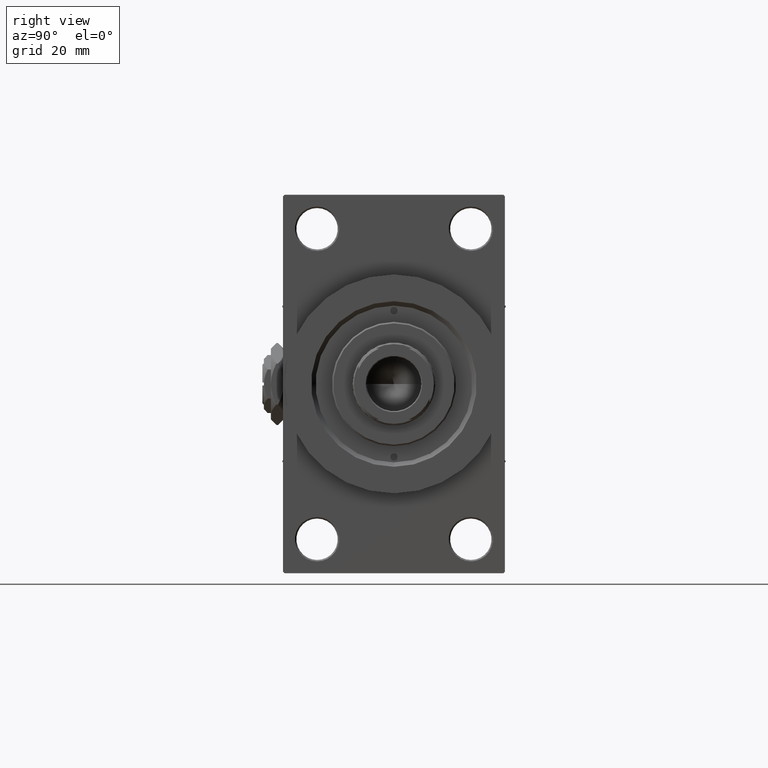
[diagram: clean part render]
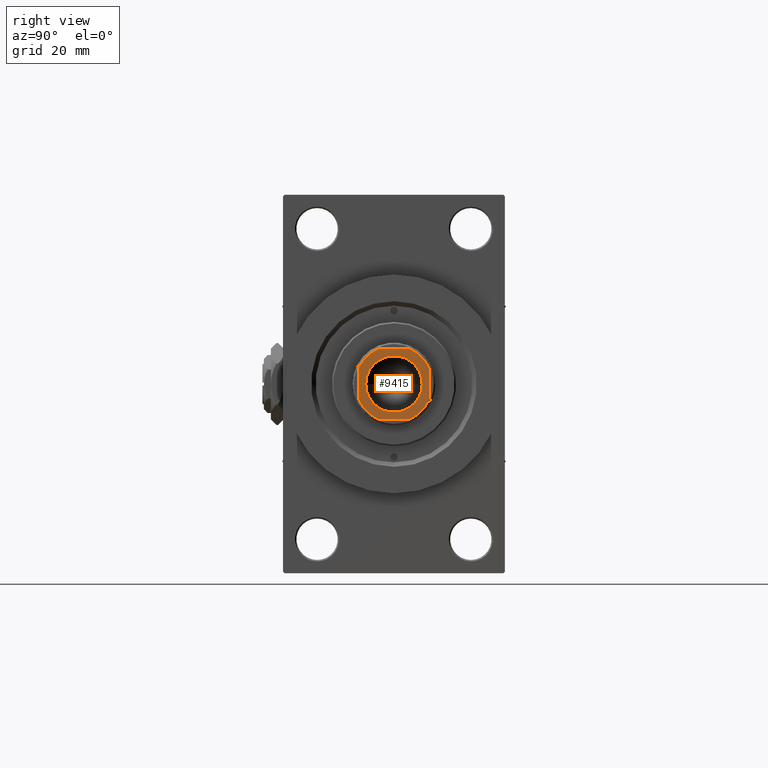
[diagram: same view with one face highlighted and labeled with its STEP entity id]
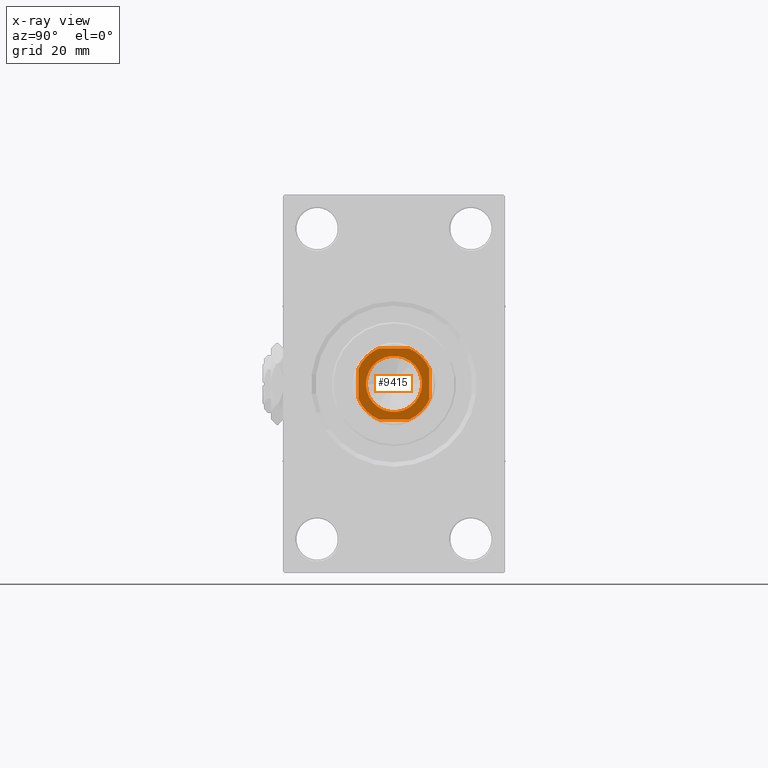
[diagram: x-ray of the same camera — body ghosted, the highlighted face saturated]
A machine part, right view. The second image highlights one B-rep face of the part: STEP entity #9415.
The next image is the same camera in x-ray: the body ghosted, the highlighted face saturated — about 0% of this face is hidden behind the body in this view.
In plain terms, the highlighted planar face has unit normal (1, 0, 0).
Its self-contained STEP definition (entity closure, byte-faithful):
#536 = CARTESIAN_POINT ( 'NONE',  ( 4.999999999999984013, 11.99999999999999645, 142.0000000000000284 ) ) ;
#1662 = AXIS2_PLACEMENT_3D ( 'NONE', #22559, #7660, #26061 ) ;
#2038 = VERTEX_POINT ( 'NONE', #8298 ) ;
#2517 = DIRECTION ( 'NONE',  ( 0.000000000000000000, -0.000000000000000000, -1.000000000000000000 ) ) ;
#3606 = EDGE_LOOP ( 'NONE', ( #5716, #37898, #16500, #34752, #8636, #34954, #28021, #42979 ) ) ;
#3992 = AXIS2_PLACEMENT_3D ( 'NONE', #13322, #36404, #28466 ) ;
#4152 = VERTEX_POINT ( 'NONE', #25389 ) ;
#4267 = DIRECTION ( 'NONE',  ( 7.228014483236695816E-17, -1.000000000000000000, 0.000000000000000000 ) ) ;
#4964 = LINE ( 'NONE', #16386, #40137 ) ;
#5535 = VECTOR ( 'NONE', #41480, 1000.000000000000000 ) ;
#5716 = ORIENTED_EDGE ( 'NONE', *, *, #47323, .T. ) ;
#6798 = VERTEX_POINT ( 'NONE', #26492 ) ;
#7660 = DIRECTION ( 'NONE',  ( -0.000000000000000000, 0.000000000000000000, 1.000000000000000000 ) ) ;
#8298 = CARTESIAN_POINT ( 'NONE',  ( -4.999999999999944933, 11.99999999999999645, 142.0000000000000284 ) ) ;
#8636 = ORIENTED_EDGE ( 'NONE', *, *, #24087, .T. ) ;
#8711 = CIRCLE ( 'NONE', #45166, 9.550000000000002487 ) ;
#9014 = LINE ( 'NONE', #24165, #22658 ) ;
#9415 = ADVANCED_FACE ( 'NONE', ( #33760, #11185 ), #30290, .T. ) ;
#9742 = DIRECTION ( 'NONE',  ( 1.000000000000000000, 0.000000000000000000, 0.000000000000000000 ) ) ;
#10484 = LINE ( 'NONE', #11200, #47579 ) ;
#10505 = EDGE_CURVE ( 'NONE', #2038, #10716, #21495, .T. ) ;
#10716 = VERTEX_POINT ( 'NONE', #44160 ) ;
#11185 = FACE_OUTER_BOUND ( 'NONE', #3606, .T. ) ;
#11200 = CARTESIAN_POINT ( 'NONE',  ( -11.99999999999999822, -12.00000000000000355, 142.0000000000000284 ) ) ;
#11325 = DIRECTION ( 'NONE',  ( -0.000000000000000000, 0.000000000000000000, 1.000000000000000000 ) ) ;
#11676 = DIRECTION ( 'NONE',  ( -0.000000000000000000, 0.000000000000000000, 1.000000000000000000 ) ) ;
#13322 = CARTESIAN_POINT ( 'NONE',  ( 0.000000000000000000, 0.000000000000000000, 142.0000000000000284 ) ) ;
#14687 = CARTESIAN_POINT ( 'NONE',  ( -12.00000000000000000, -4.999999999999980460, 142.0000000000000284 ) ) ;
#15071 = EDGE_CURVE ( 'NONE', #24778, #2038, #30785, .T. ) ;
#16386 = CARTESIAN_POINT ( 'NONE',  ( 11.99999999999999645, 11.99999999999999645, 142.0000000000000284 ) ) ;
#16500 = ORIENTED_EDGE ( 'NONE', *, *, #15071, .T. ) ;
#17026 = CIRCLE ( 'NONE', #20225, 12.99999999999999112 ) ;
#17492 = CIRCLE ( 'NONE', #3992, 12.99999999999999289 ) ;
#18875 = AXIS2_PLACEMENT_3D ( 'NONE', #39901, #46862, #24508 ) ;
#19192 = VERTEX_POINT ( 'NONE', #14687 ) ;
#19315 = EDGE_LOOP ( 'NONE', ( #22214, #34872 ) ) ;
#20225 = AXIS2_PLACEMENT_3D ( 'NONE', #45349, #11325, #37888 ) ;
#21192 = VERTEX_POINT ( 'NONE', #24059 ) ;
#21495 = CIRCLE ( 'NONE', #1662, 12.99999999999997513 ) ;
#22214 = ORIENTED_EDGE ( 'NONE', *, *, #33571, .T. ) ;
#22559 = CARTESIAN_POINT ( 'NONE',  ( 0.000000000000000000, 0.000000000000000000, 142.0000000000000284 ) ) ;
#22626 = DIRECTION ( 'NONE',  ( 0.000000000000000000, -0.000000000000000000, -1.000000000000000000 ) ) ;
#22658 = VECTOR ( 'NONE', #4267, 1000.000000000000000 ) ;
#22872 = DIRECTION ( 'NONE',  ( 1.000000000000000000, 0.000000000000000000, 0.000000000000000000 ) ) ;
#24059 = CARTESIAN_POINT ( 'NONE',  ( -9.550000000000002487, 1.169537693185722558E-15, 142.0000000000000284 ) ) ;
#24087 = EDGE_CURVE ( 'NONE', #10716, #19192, #9014, .T. ) ;
#24103 = DIRECTION ( 'NONE',  ( -2.891205793294678326E-16, 1.000000000000000000, -0.000000000000000000 ) ) ;
#24165 = CARTESIAN_POINT ( 'NONE',  ( -12.00000000000000000, 11.99999999999999645, 142.0000000000000284 ) ) ;
#24508 = DIRECTION ( 'NONE',  ( 1.000000000000000000, 0.000000000000000000, 0.000000000000000000 ) ) ;
#24778 = VERTEX_POINT ( 'NONE', #536 ) ;
#25389 = CARTESIAN_POINT ( 'NONE',  ( -4.999999999999971578, -12.00000000000000355, 142.0000000000000284 ) ) ;
#26061 = DIRECTION ( 'NONE',  ( 1.000000000000000000, 0.000000000000000000, 0.000000000000000000 ) ) ;
#26327 = CARTESIAN_POINT ( 'NONE',  ( -12.00000000000000000, 11.99999999999999645, 142.0000000000000284 ) ) ;
#26330 = CARTESIAN_POINT ( 'NONE',  ( 0.000000000000000000, 0.000000000000000000, 142.0000000000000284 ) ) ;
#26343 = DIRECTION ( 'NONE',  ( 1.000000000000000000, 0.000000000000000000, 0.000000000000000000 ) ) ;
#26492 = CARTESIAN_POINT ( 'NONE',  ( 12.00000000000000178, -4.999999999999976907, 142.0000000000000284 ) ) ;
#26529 = EDGE_CURVE ( 'NONE', #21192, #28075, #46541, .T. ) ;
#28021 = ORIENTED_EDGE ( 'NONE', *, *, #37527, .T. ) ;
#28075 = VERTEX_POINT ( 'NONE', #48123 ) ;
#28466 = DIRECTION ( 'NONE',  ( 1.000000000000000000, 0.000000000000000000, 0.000000000000000000 ) ) ;
#28584 = AXIS2_PLACEMENT_3D ( 'NONE', #26330, #11676, #37279 ) ;
#30290 = PLANE ( 'NONE',  #28584 ) ;
#30785 = LINE ( 'NONE', #26327, #5535 ) ;
#30823 = CARTESIAN_POINT ( 'NONE',  ( 0.000000000000000000, 0.000000000000000000, 142.0000000000000284 ) ) ;
#30957 = CARTESIAN_POINT ( 'NONE',  ( 4.999999999999971578, -12.00000000000000355, 142.0000000000000284 ) ) ;
#33017 = VERTEX_POINT ( 'NONE', #43854 ) ;
#33571 = EDGE_CURVE ( 'NONE', #28075, #21192, #8711, .T. ) ;
#33760 = FACE_BOUND ( 'NONE', #19315, .T. ) ;
#34062 = EDGE_CURVE ( 'NONE', #19192, #4152, #40346, .T. ) ;
#34752 = ORIENTED_EDGE ( 'NONE', *, *, #10505, .T. ) ;
#34872 = ORIENTED_EDGE ( 'NONE', *, *, #26529, .T. ) ;
#34954 = ORIENTED_EDGE ( 'NONE', *, *, #34062, .T. ) ;
#36404 = DIRECTION ( 'NONE',  ( -0.000000000000000000, 0.000000000000000000, 1.000000000000000000 ) ) ;
#37279 = DIRECTION ( 'NONE',  ( 1.000000000000000000, 0.000000000000000000, 0.000000000000000000 ) ) ;
#37285 = CARTESIAN_POINT ( 'NONE',  ( 0.000000000000000000, 0.000000000000000000, 142.0000000000000284 ) ) ;
#37527 = EDGE_CURVE ( 'NONE', #4152, #45888, #10484, .T. ) ;
#37888 = DIRECTION ( 'NONE',  ( 1.000000000000000000, 0.000000000000000000, 0.000000000000000000 ) ) ;
#37898 = ORIENTED_EDGE ( 'NONE', *, *, #48592, .T. ) ;
#39232 = EDGE_CURVE ( 'NONE', #45888, #6798, #17492, .T. ) ;
#39901 = CARTESIAN_POINT ( 'NONE',  ( 0.000000000000000000, 0.000000000000000000, 142.0000000000000284 ) ) ;
#40137 = VECTOR ( 'NONE', #24103, 1000.000000000000000 ) ;
#40346 = CIRCLE ( 'NONE', #18875, 12.99999999999999289 ) ;
#41480 = DIRECTION ( 'NONE',  ( -1.000000000000000000, -0.000000000000000000, -0.000000000000000000 ) ) ;
#42979 = ORIENTED_EDGE ( 'NONE', *, *, #39232, .T. ) ;
#43854 = CARTESIAN_POINT ( 'NONE',  ( 11.99999999999999822, 4.999999999999980460, 142.0000000000000284 ) ) ;
#44160 = CARTESIAN_POINT ( 'NONE',  ( -12.00000000000000000, 4.999999999999936051, 142.0000000000000284 ) ) ;
#45166 = AXIS2_PLACEMENT_3D ( 'NONE', #30823, #22626, #22872 ) ;
#45349 = CARTESIAN_POINT ( 'NONE',  ( 0.000000000000000000, 0.000000000000000000, 142.0000000000000284 ) ) ;
#45888 = VERTEX_POINT ( 'NONE', #30957 ) ;
#46541 = CIRCLE ( 'NONE', #48914, 9.550000000000002487 ) ;
#46862 = DIRECTION ( 'NONE',  ( -0.000000000000000000, 0.000000000000000000, 1.000000000000000000 ) ) ;
#47323 = EDGE_CURVE ( 'NONE', #6798, #33017, #4964, .T. ) ;
#47579 = VECTOR ( 'NONE', #26343, 1000.000000000000000 ) ;
#48123 = CARTESIAN_POINT ( 'NONE',  ( 9.550000000000002487, 0.000000000000000000, 142.0000000000000284 ) ) ;
#48592 = EDGE_CURVE ( 'NONE', #33017, #24778, #17026, .T. ) ;
#48914 = AXIS2_PLACEMENT_3D ( 'NONE', #37285, #2517, #9742 ) ;